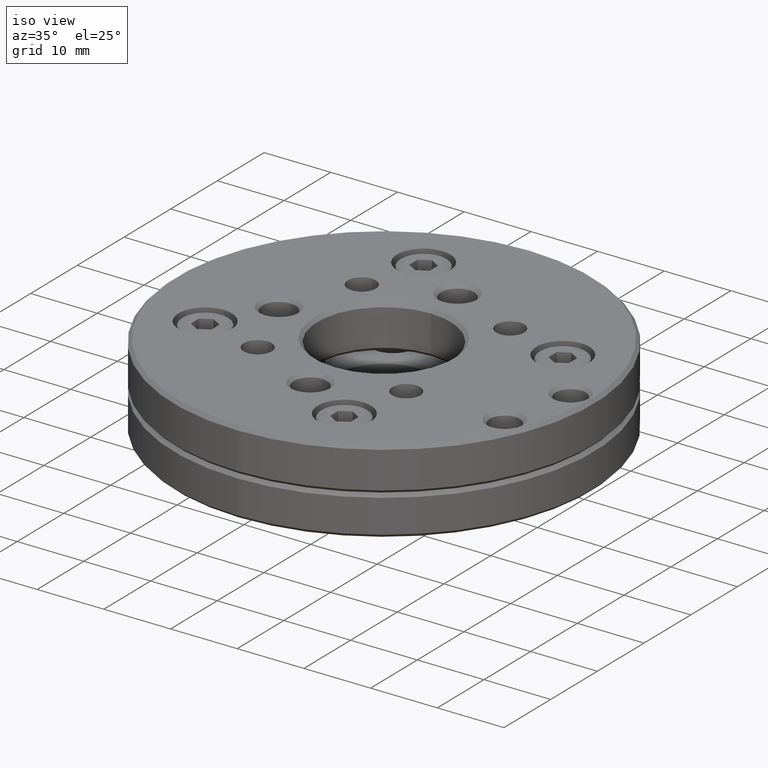
[diagram: clean part render]
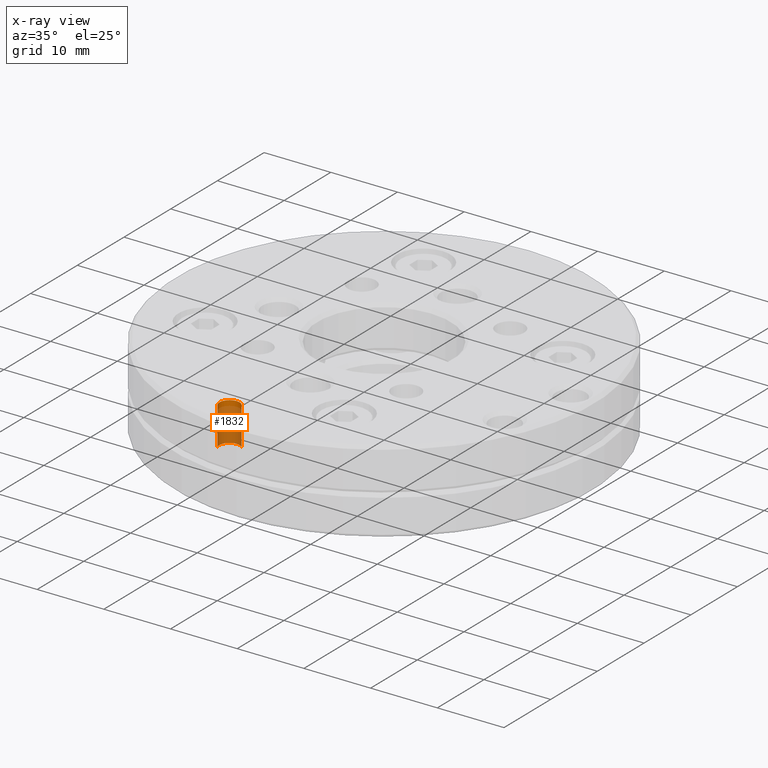
[diagram: x-ray — body ghosted, one internal face saturated and labeled with its STEP entity id]
A machine part, iso view, then the same camera in x-ray: the body is ghosted and one INTERNAL B-rep face — a face not visible from any outside direction — is saturated and labeled: STEP entity #1832.
In plain terms, the highlighted cylindrical surface (edge-blend (fillet) strip) has radius 1.5 mm, axis along (-0, 0, -1).
Its self-contained STEP definition (entity closure, byte-faithful):
#91 = DIRECTION ( 'NONE',  ( -2.000931356473882417E-29, 3.491481338843147160E-15, -1.000000000000000000 ) ) ;
#264 = EDGE_CURVE ( 'NONE', #3827, #5779, #5807, .T. ) ;
#284 = CARTESIAN_POINT ( 'NONE',  ( -8.610377228214645129, -20.78728948150391176, 2.999999999999927169 ) ) ;
#293 = CIRCLE ( 'NONE', #3221, 1.500000000000002442 ) ;
#372 = CARTESIAN_POINT ( 'NONE',  ( -9.739551598302059077, -21.77469276382458929, -2.800000000000075762 ) ) ;
#702 = DIRECTION ( 'NONE',  ( -2.000931356473882417E-29, 3.491481338843147160E-15, -1.000000000000000000 ) ) ;
#903 = AXIS2_PLACEMENT_3D ( 'NONE', #284, #6343, #3407 ) ;
#1068 = EDGE_LOOP ( 'NONE', ( #1345, #6254, #1875, #3868 ) ) ;
#1130 = EDGE_CURVE ( 'NONE', #5779, #5598, #3619, .T. ) ;
#1166 = CARTESIAN_POINT ( 'NONE',  ( -9.739551598302069735, -21.77469276382459995, 2.999999999999923617 ) ) ;
#1345 = ORIENTED_EDGE ( 'NONE', *, *, #3053, .F. ) ;
#1347 = CARTESIAN_POINT ( 'NONE',  ( -9.739551598302066182, -21.77469276382460706, 2.999999999999923617 ) ) ;
#1653 = DIRECTION ( 'NONE',  ( 0.7527829133916126292, 0.6582688548804628281, 2.312964634635739111E-15 ) ) ;
#1832 = ADVANCED_FACE ( 'NONE', ( #2287 ), #5393, .T. ) ;
#1875 = ORIENTED_EDGE ( 'NONE', *, *, #1130, .T. ) ;
#1998 = DIRECTION ( 'NONE',  ( -2.000931356473882417E-29, 3.491481338843147160E-15, -1.000000000000000000 ) ) ;
#2123 = VECTOR ( 'NONE', #702, 1000.000000000000000 ) ;
#2287 = FACE_OUTER_BOUND ( 'NONE', #1068, .T. ) ;
#2978 = CARTESIAN_POINT ( 'NONE',  ( -8.610377228214645129, -20.78728948150389044, -2.800000000000072209 ) ) ;
#3053 = EDGE_CURVE ( 'NONE', #3827, #6316, #5396, .T. ) ;
#3074 = CARTESIAN_POINT ( 'NONE',  ( -7.481202858127224964, -19.79988619918321291, 2.999999999999930722 ) ) ;
#3221 = AXIS2_PLACEMENT_3D ( 'NONE', #2978, #1998, #6595 ) ;
#3407 = DIRECTION ( 'NONE',  ( 0.7527829133916126292, 0.6582688548804628281, 2.312964634635739111E-15 ) ) ;
#3438 = AXIS2_PLACEMENT_3D ( 'NONE', #3787, #91, #1653 ) ;
#3619 = LINE ( 'NONE', #6055, #5121 ) ;
#3787 = CARTESIAN_POINT ( 'NONE',  ( -8.610377228214645129, -20.78728948150391176, 2.999999999999927169 ) ) ;
#3827 = VERTEX_POINT ( 'NONE', #1166 ) ;
#3868 = ORIENTED_EDGE ( 'NONE', *, *, #3973, .F. ) ;
#3973 = EDGE_CURVE ( 'NONE', #6316, #5598, #293, .T. ) ;
#4533 = CARTESIAN_POINT ( 'NONE',  ( -7.481202858127224964, -19.79988619918319515, -2.800000000000069100 ) ) ;
#5121 = VECTOR ( 'NONE', #5643, 1000.000000000000000 ) ;
#5393 = CYLINDRICAL_SURFACE ( 'NONE', #903, 1.500000000000002442 ) ;
#5396 = LINE ( 'NONE', #1347, #2123 ) ;
#5598 = VERTEX_POINT ( 'NONE', #4533 ) ;
#5643 = DIRECTION ( 'NONE',  ( -2.000931356473882417E-29, 3.491481338843147160E-15, -1.000000000000000000 ) ) ;
#5779 = VERTEX_POINT ( 'NONE', #3074 ) ;
#5807 = CIRCLE ( 'NONE', #3438, 1.500000000000002442 ) ;
#6055 = CARTESIAN_POINT ( 'NONE',  ( -7.481202858127224964, -19.79988619918321291, 2.999999999999930722 ) ) ;
#6254 = ORIENTED_EDGE ( 'NONE', *, *, #264, .T. ) ;
#6316 = VERTEX_POINT ( 'NONE', #372 ) ;
#6343 = DIRECTION ( 'NONE',  ( -2.000931356473882417E-29, 3.491481338843147160E-15, -1.000000000000000000 ) ) ;
#6595 = DIRECTION ( 'NONE',  ( 0.7527829133916126292, 0.6582688548804628281, 2.312964634635739111E-15 ) ) ;